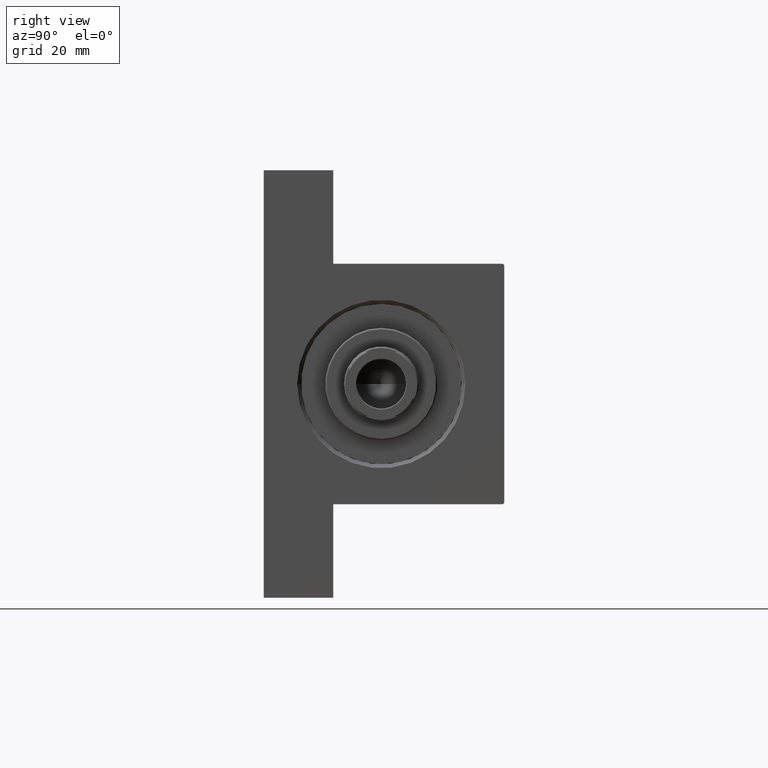
[diagram: clean part render]
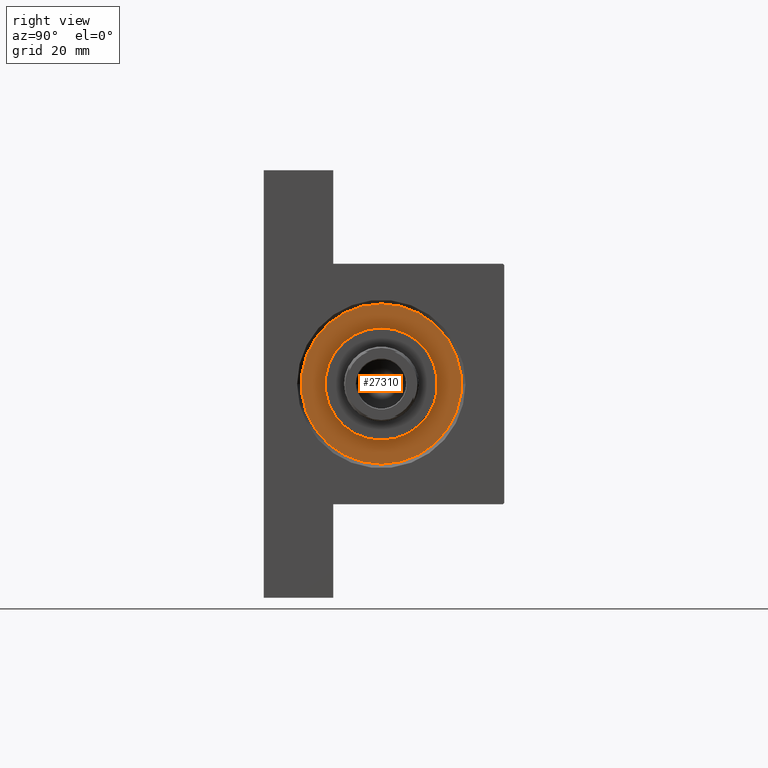
[diagram: same view with one face highlighted and labeled with its STEP entity id]
A machine part, right view. The second image highlights one B-rep face of the part: STEP entity #27310.
In plain terms, the highlighted planar face has unit normal (1, 0, 0).
Its self-contained STEP definition (entity closure, byte-faithful):
#2264 = AXIS2_PLACEMENT_3D ( 'NONE', #16597, #24064, #31736 ) ;
#2366 = VERTEX_POINT ( 'NONE', #25509 ) ;
#3609 = DIRECTION ( 'NONE',  ( 1.000000000000000000, 0.000000000000000000, 0.000000000000000000 ) ) ;
#5436 = CIRCLE ( 'NONE', #30038, 21.00000000000000000 ) ;
#6109 = EDGE_CURVE ( 'NONE', #11495, #22543, #29490, .T. ) ;
#6368 = DIRECTION ( 'NONE',  ( 0.000000000000000000, 0.000000000000000000, 1.000000000000000000 ) ) ;
#7930 = CARTESIAN_POINT ( 'NONE',  ( -30.00000000000000000, 0.000000000000000000, 28.69999999999999929 ) ) ;
#8257 = AXIS2_PLACEMENT_3D ( 'NONE', #45889, #41784, #20594 ) ;
#9979 = CARTESIAN_POINT ( 'NONE',  ( 0.000000000000000000, 0.000000000000000000, 28.69999999999999929 ) ) ;
#11007 = CARTESIAN_POINT ( 'NONE',  ( 0.000000000000000000, 0.000000000000000000, 28.69999999999999929 ) ) ;
#11075 = CARTESIAN_POINT ( 'NONE',  ( 0.000000000000000000, 0.000000000000000000, 28.69999999999999929 ) ) ;
#11303 = VERTEX_POINT ( 'NONE', #29893 ) ;
#11495 = VERTEX_POINT ( 'NONE', #7930 ) ;
#13888 = FACE_OUTER_BOUND ( 'NONE', #33994, .T. ) ;
#14123 = AXIS2_PLACEMENT_3D ( 'NONE', #9979, #6368, #35726 ) ;
#16597 = CARTESIAN_POINT ( 'NONE',  ( 0.000000000000000000, 0.000000000000000000, 28.69999999999999929 ) ) ;
#19225 = EDGE_CURVE ( 'NONE', #2366, #11303, #28993, .T. ) ;
#20594 = DIRECTION ( 'NONE',  ( 1.000000000000000000, 0.000000000000000000, 0.000000000000000000 ) ) ;
#22543 = VERTEX_POINT ( 'NONE', #26378 ) ;
#24064 = DIRECTION ( 'NONE',  ( 0.000000000000000000, 0.000000000000000000, 1.000000000000000000 ) ) ;
#24120 = EDGE_CURVE ( 'NONE', #22543, #11495, #38404, .T. ) ;
#25509 = CARTESIAN_POINT ( 'NONE',  ( -21.00000000000000000, 0.000000000000000000, 28.69999999999999929 ) ) ;
#26378 = CARTESIAN_POINT ( 'NONE',  ( 30.00000000000000000, 3.673940397442059178E-15, 28.69999999999999929 ) ) ;
#27310 = ADVANCED_FACE ( 'NONE', ( #38944, #13888 ), #32403, .T. ) ;
#28993 = CIRCLE ( 'NONE', #8257, 21.00000000000000000 ) ;
#29276 = EDGE_LOOP ( 'NONE', ( #36406, #41657 ) ) ;
#29490 = CIRCLE ( 'NONE', #14123, 30.00000000000000000 ) ;
#29893 = CARTESIAN_POINT ( 'NONE',  ( 21.00000000000000000, 2.571758278209441661E-15, 28.69999999999999929 ) ) ;
#30038 = AXIS2_PLACEMENT_3D ( 'NONE', #11075, #36816, #3609 ) ;
#30692 = ORIENTED_EDGE ( 'NONE', *, *, #6109, .T. ) ;
#31736 = DIRECTION ( 'NONE',  ( 1.000000000000000000, 0.000000000000000000, 0.000000000000000000 ) ) ;
#32403 = PLANE ( 'NONE',  #39267 ) ;
#33891 = EDGE_CURVE ( 'NONE', #11303, #2366, #5436, .T. ) ;
#33994 = EDGE_LOOP ( 'NONE', ( #30692, #43917 ) ) ;
#35726 = DIRECTION ( 'NONE',  ( 1.000000000000000000, 0.000000000000000000, 0.000000000000000000 ) ) ;
#36406 = ORIENTED_EDGE ( 'NONE', *, *, #19225, .F. ) ;
#36816 = DIRECTION ( 'NONE',  ( 0.000000000000000000, 0.000000000000000000, 1.000000000000000000 ) ) ;
#38404 = CIRCLE ( 'NONE', #2264, 30.00000000000000000 ) ;
#38944 = FACE_BOUND ( 'NONE', #29276, .T. ) ;
#39267 = AXIS2_PLACEMENT_3D ( 'NONE', #11007, #47117, #40366 ) ;
#40366 = DIRECTION ( 'NONE',  ( 1.000000000000000000, 0.000000000000000000, -0.000000000000000000 ) ) ;
#41657 = ORIENTED_EDGE ( 'NONE', *, *, #33891, .F. ) ;
#41784 = DIRECTION ( 'NONE',  ( 0.000000000000000000, 0.000000000000000000, 1.000000000000000000 ) ) ;
#43917 = ORIENTED_EDGE ( 'NONE', *, *, #24120, .T. ) ;
#45889 = CARTESIAN_POINT ( 'NONE',  ( 0.000000000000000000, 0.000000000000000000, 28.69999999999999929 ) ) ;
#47117 = DIRECTION ( 'NONE',  ( 0.000000000000000000, 0.000000000000000000, 1.000000000000000000 ) ) ;